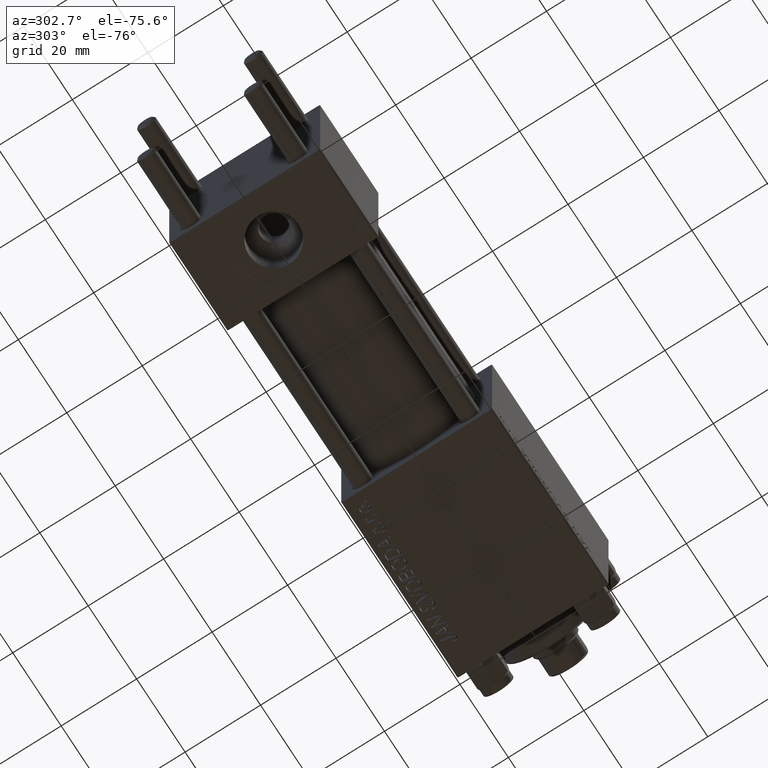
[diagram: clean part render]
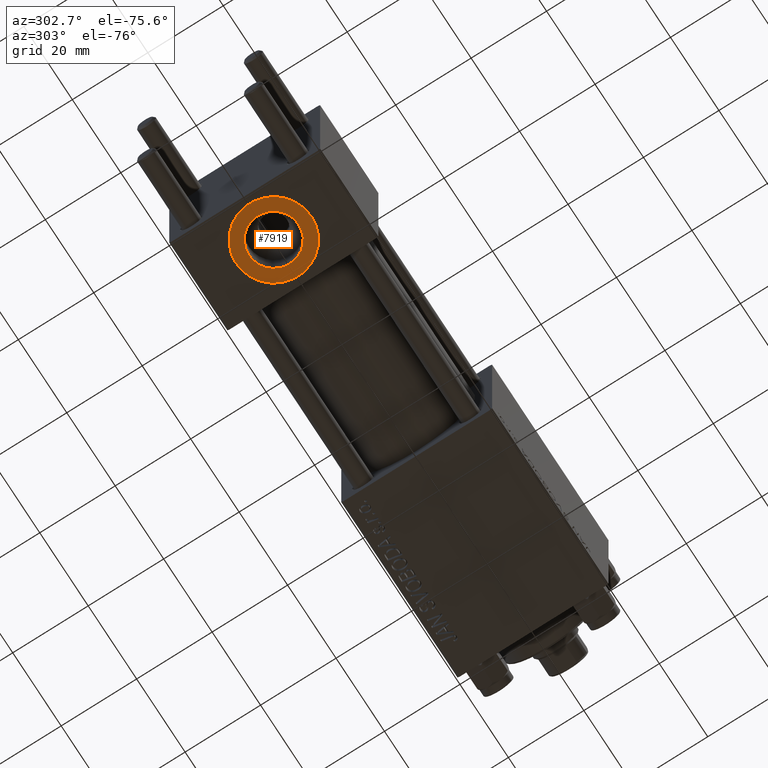
[diagram: same view with one face highlighted and labeled with its STEP entity id]
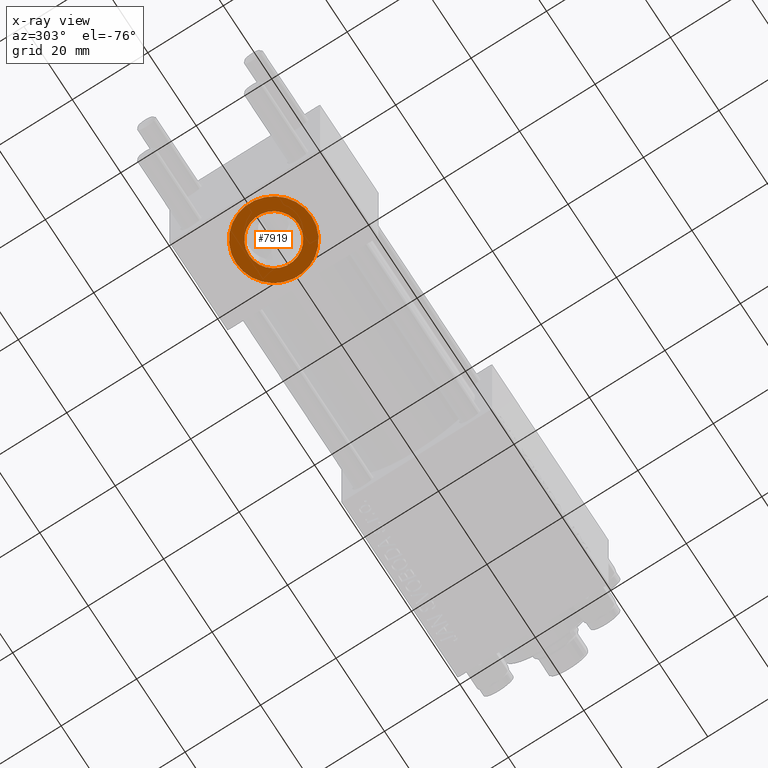
[diagram: x-ray of the same camera — body ghosted, the highlighted face saturated]
A machine part, auxiliary view. The second image highlights one B-rep face of the part: STEP entity #7919.
The next image is the same camera in x-ray: the body ghosted, the highlighted face saturated — about 0% of this face is hidden behind the body in this view.
In plain terms, the highlighted planar face has unit normal (0, -0, -1).
Its self-contained STEP definition (entity closure, byte-faithful):
#2019 = CARTESIAN_POINT ( 'NONE',  ( 12.00000000000000000, 9.999999999999996447, -19.80000000000000426 ) ) ;
#4725 = AXIS2_PLACEMENT_3D ( 'NONE', #5556, #29227, #44590 ) ;
#5068 = CARTESIAN_POINT ( 'NONE',  ( 12.00000000000000000, -4.904328641410901403E-15, -19.80000000000000426 ) ) ;
#5556 = CARTESIAN_POINT ( 'NONE',  ( 12.00000000000000000, -4.904328641410901403E-15, -19.80000000000000426 ) ) ;
#6081 = VERTEX_POINT ( 'NONE', #30645 ) ;
#6511 = EDGE_LOOP ( 'NONE', ( #33578, #25280 ) ) ;
#7919 = ADVANCED_FACE ( 'NONE', ( #20321, #13506 ), #47260, .T. ) ;
#8585 = DIRECTION ( 'NONE',  ( 0.000000000000000000, -1.734723475976806848E-16, -1.000000000000000000 ) ) ;
#9502 = EDGE_LOOP ( 'NONE', ( #25476, #41713 ) ) ;
#9581 = EDGE_CURVE ( 'NONE', #16762, #16456, #33657, .T. ) ;
#13506 = FACE_OUTER_BOUND ( 'NONE', #9502, .T. ) ;
#14332 = DIRECTION ( 'NONE',  ( 0.000000000000000000, 1.000000000000000000, 0.000000000000000000 ) ) ;
#15956 = CARTESIAN_POINT ( 'NONE',  ( 12.00000000000000178, -10.00000000000000711, -19.80000000000000426 ) ) ;
#16456 = VERTEX_POINT ( 'NONE', #15956 ) ;
#16471 = CIRCLE ( 'NONE', #44616, 10.00000000000000178 ) ;
#16640 = DIRECTION ( 'NONE',  ( 0.000000000000000000, 1.000000000000000000, 0.000000000000000000 ) ) ;
#16762 = VERTEX_POINT ( 'NONE', #2019 ) ;
#18606 = DIRECTION ( 'NONE',  ( 0.000000000000000000, -1.734723475976806848E-16, -1.000000000000000000 ) ) ;
#20321 = FACE_BOUND ( 'NONE', #6511, .T. ) ;
#20591 = CIRCLE ( 'NONE', #22200, 6.580000000000000071 ) ;
#21219 = AXIS2_PLACEMENT_3D ( 'NONE', #37854, #33573, #38354 ) ;
#21314 = DIRECTION ( 'NONE',  ( 0.000000000000000000, -1.734723475976806848E-16, -1.000000000000000000 ) ) ;
#22200 = AXIS2_PLACEMENT_3D ( 'NONE', #41045, #18606, #14332 ) ;
#25280 = ORIENTED_EDGE ( 'NONE', *, *, #25898, .F. ) ;
#25476 = ORIENTED_EDGE ( 'NONE', *, *, #9581, .T. ) ;
#25898 = EDGE_CURVE ( 'NONE', #6081, #38560, #42948, .T. ) ;
#28916 = EDGE_CURVE ( 'NONE', #16456, #16762, #16471, .T. ) ;
#29227 = DIRECTION ( 'NONE',  ( 0.000000000000000000, -1.734723475976806848E-16, -1.000000000000000000 ) ) ;
#30645 = CARTESIAN_POINT ( 'NONE',  ( 12.00000000000000000, -6.580000000000006288, -19.80000000000000426 ) ) ;
#32889 = DIRECTION ( 'NONE',  ( 0.000000000000000000, 1.000000000000000000, -1.734723475976806848E-16 ) ) ;
#33573 = DIRECTION ( 'NONE',  ( 0.000000000000000000, -1.734723475976806848E-16, -1.000000000000000000 ) ) ;
#33578 = ORIENTED_EDGE ( 'NONE', *, *, #35396, .F. ) ;
#33657 = CIRCLE ( 'NONE', #4725, 10.00000000000000178 ) ;
#35396 = EDGE_CURVE ( 'NONE', #38560, #6081, #20591, .T. ) ;
#37854 = CARTESIAN_POINT ( 'NONE',  ( 12.00000000000000000, -4.904328641410902191E-15, -19.80000000000000426 ) ) ;
#38354 = DIRECTION ( 'NONE',  ( 0.000000000000000000, 1.000000000000000000, 0.000000000000000000 ) ) ;
#38560 = VERTEX_POINT ( 'NONE', #43511 ) ;
#39953 = CARTESIAN_POINT ( 'NONE',  ( 12.00000000000000000, -4.904328641410901403E-15, -19.80000000000000426 ) ) ;
#41045 = CARTESIAN_POINT ( 'NONE',  ( 12.00000000000000000, -4.904328641410902191E-15, -19.80000000000000426 ) ) ;
#41713 = ORIENTED_EDGE ( 'NONE', *, *, #28916, .T. ) ;
#42948 = CIRCLE ( 'NONE', #21219, 6.580000000000000071 ) ;
#43276 = AXIS2_PLACEMENT_3D ( 'NONE', #39953, #21314, #32889 ) ;
#43511 = CARTESIAN_POINT ( 'NONE',  ( 12.00000000000000000, 6.579999999999994742, -19.80000000000000426 ) ) ;
#44590 = DIRECTION ( 'NONE',  ( 0.000000000000000000, 1.000000000000000000, 0.000000000000000000 ) ) ;
#44616 = AXIS2_PLACEMENT_3D ( 'NONE', #5068, #8585, #16640 ) ;
#47260 = PLANE ( 'NONE',  #43276 ) ;